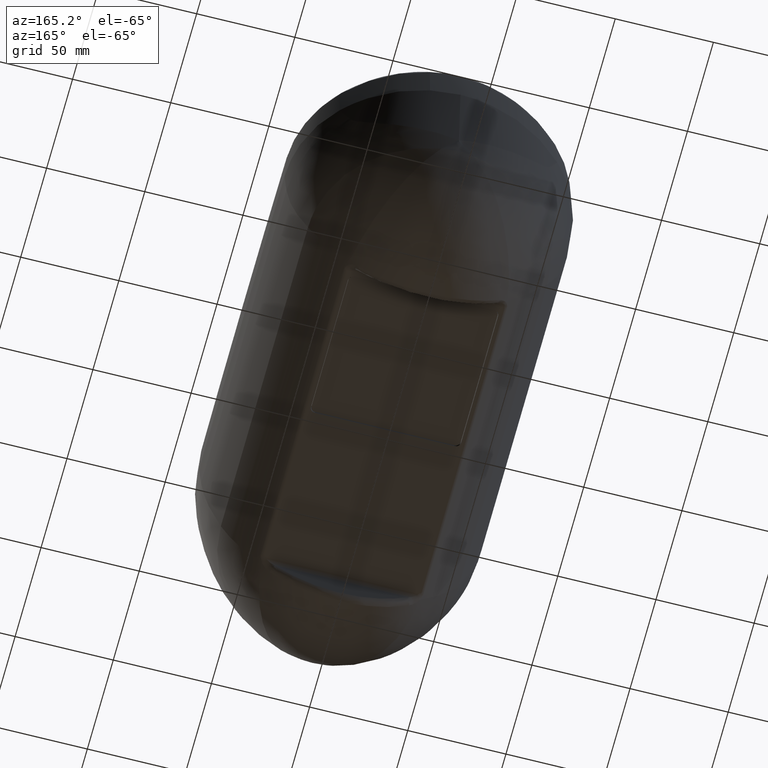
[diagram: clean part render]
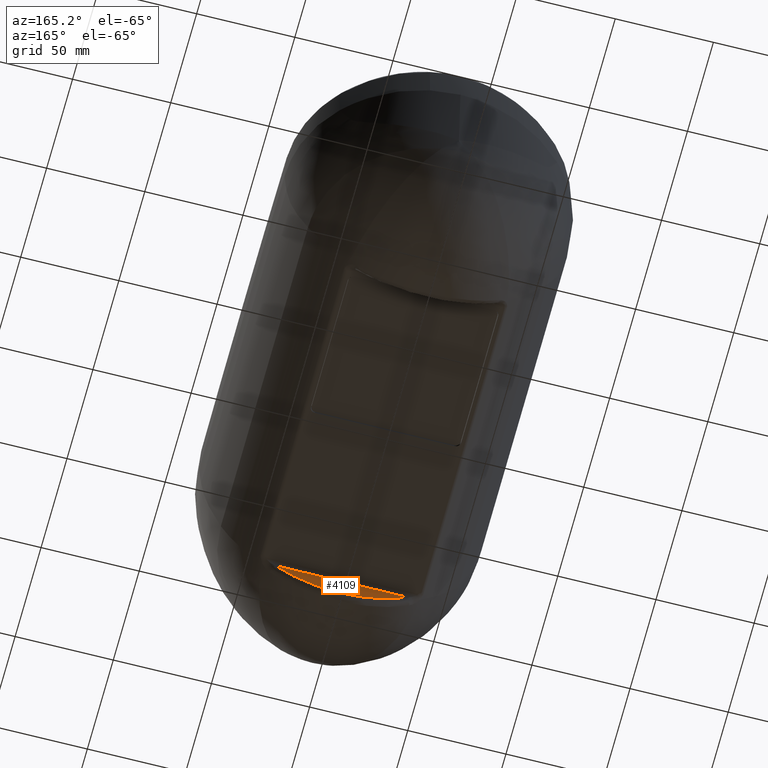
[diagram: same view with one face highlighted and labeled with its STEP entity id]
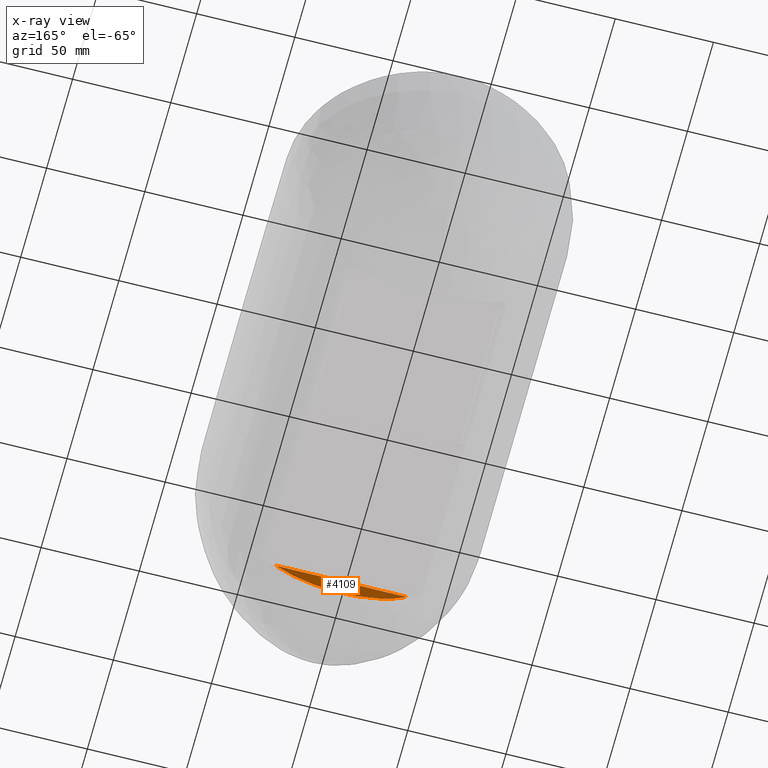
[diagram: x-ray of the same camera — body ghosted, the highlighted face saturated]
A machine part, auxiliary view. The second image highlights one B-rep face of the part: STEP entity #4109.
The next image is the same camera in x-ray: the body ghosted, the highlighted face saturated — about 0% of this face is hidden behind the body in this view.
In plain terms, the highlighted planar face has unit normal (0, 0.9986, -0.0523).
Its self-contained STEP definition (entity closure, byte-faithful):
#663 = CARTESIAN_POINT ( 'NONE',  ( 14.92591153705166995, -39.75024826428141012, 78.07579926686130989 ) ) ;
#980 = CARTESIAN_POINT ( 'NONE',  ( 3.036556305407047240, -39.86407716933042877, 75.90381437060659664 ) ) ;
#1344 = VECTOR ( 'NONE', #4018, 1000.000000000000000 ) ;
#1490 = FACE_OUTER_BOUND ( 'NONE', #12181, .T. ) ;
#1719 = EDGE_CURVE ( 'Defeatured_1_19+Defeatured_1_32+Defeatured_1_35+Defeatured_1_35', #15215, #4623, #12021, .T. ) ;
#1857 = CARTESIAN_POINT ( 'NONE',  ( 28.61712390733957534, -39.41405370093367821, 84.49077368377042774 ) ) ;
#1940 = CARTESIAN_POINT ( 'NONE',  ( 12.00217459347269333, -39.79157725061336492, 77.28719522949599252 ) ) ;
#2457 = ORIENTED_EDGE ( 'NONE', *, *, #12517, .T. ) ;
#3285 = CARTESIAN_POINT ( 'NONE',  ( -33.46319767680959956, -39.22191450896857390, 88.15700786872807271 ) ) ;
#3523 = CARTESIAN_POINT ( 'NONE',  ( -7.590742059294302457, -39.83523445758658710, 76.45416609583543277 ) ) ;
#4018 = DIRECTION ( 'NONE',  ( 1.000000000000000000, -5.007417855406813218E-32, 5.551115123125782702E-17 ) ) ;
#4109 = ADVANCED_FACE ( 'Defeatured_1_19', ( #1490 ), #11112, .T. ) ;
#4235 = CARTESIAN_POINT ( 'NONE',  ( 32.29575474363673493, -39.27367387239959839, 87.16938038022938429 ) ) ;
#4623 = VERTEX_POINT ( 'NONE', #12960 ) ;
#5212 = CARTESIAN_POINT ( 'NONE',  ( 4.923839114212562315E-14, -39.07291960484941740, 90.99999999999901945 ) ) ;
#5733 = CARTESIAN_POINT ( 'NONE',  ( -14.98165566666310689, -39.75300801640128867, 78.02314005943755149 ) ) ;
#6330 = DIRECTION ( 'NONE',  ( -5.543507512776179837E-17, 0.05233595624294334892, 0.9986295347545739443 ) ) ;
#6700 = CARTESIAN_POINT ( 'NONE',  ( 20.67904992731402558, -39.64361685871377006, 80.11044769170206337 ) ) ;
#7020 = CARTESIAN_POINT ( 'NONE',  ( -1.552627738984635686, -39.86397342641608788, 75.90579390333553533 ) ) ;
#7434 = AXIS2_PLACEMENT_3D ( 'NONE', #5212, #11417, #6330 ) ;
#9097 = CARTESIAN_POINT ( 'NONE',  ( 27.34219849094714760, -39.45692590732971894, 83.67272325342332806 ) ) ;
#9718 = CARTESIAN_POINT ( 'NONE',  ( -99.99999999999998579, -39.22191450896854548, 88.15700786872804429 ) ) ;
#9959 = CARTESIAN_POINT ( 'NONE',  ( -33.46319767680959956, -39.22191450896857390, 88.15700786872807271 ) ) ;
#10296 = CARTESIAN_POINT ( 'NONE',  ( 33.46319767680964219, -39.22191450896858811, 88.15700786872807271 ) ) ;
#10522 = CARTESIAN_POINT ( 'NONE',  ( -23.59272926378794111, -39.58745382383163047, 81.18210223708598505 ) ) ;
#10597 = CARTESIAN_POINT ( 'NONE',  ( -6.090395040453161712, -39.84566927308303264, 76.25505795503683260 ) ) ;
#10677 = CARTESIAN_POINT ( 'NONE',  ( -8.339580897681692306, -39.82913997634635450, 76.57045572542131140 ) ) ;
#11112 = PLANE ( 'NONE',  #7434 ) ;
#11417 = DIRECTION ( 'NONE',  ( 2.905229181834569746E-18, 0.9986295347545739443, -0.05233595624294334892 ) ) ;
#11556 = CARTESIAN_POINT ( 'NONE',  ( 16.37430350928464762, -39.72615899498632785, 78.53544990698827633 ) ) ;
#11638 = CARTESIAN_POINT ( 'NONE',  ( 10.52808881301246124, -39.80880528347721281, 76.95846477956031606 ) ) ;
#11883 = CARTESIAN_POINT ( 'NONE',  ( -12.06039555500532856, -39.79443801190919316, 77.23260865217959292 ) ) ;
#12021 = LINE ( 'NONE', #9718, #1344 ) ;
#12044 = CARTESIAN_POINT ( 'NONE',  ( -3.832529263202431036, -39.85872143769642406, 76.00600781797778893 ) ) ;
#12181 = EDGE_LOOP ( 'NONE', ( #15725, #2457 ) ) ;
#12517 = EDGE_CURVE ( 'Defeatured_1_19+Defeatured_1_35+Defeatured_1_32+Defeatured_1_32', #4623, #15215, #14203, .T. ) ;
#12756 = CARTESIAN_POINT ( 'NONE',  ( 23.42184858661730473, -39.57629276933956675, 81.39506784342825085 ) ) ;
#12838 = CARTESIAN_POINT ( 'NONE',  ( 31.09305140310816284, -39.32245358347885400, 86.23860804553815740 ) ) ;
#12960 = CARTESIAN_POINT ( 'NONE',  ( 33.46319767680964219, -39.22191450896858811, 88.15700786872807271 ) ) ;
#13157 = CARTESIAN_POINT ( 'NONE',  ( -28.79645731193401303, -39.42881756497288137, 84.20906237599965038 ) ) ;
#14103 = CARTESIAN_POINT ( 'NONE',  ( 6.057846827647574983, -39.85028515871961474, 76.16698161027008496 ) ) ;
#14203 = B_SPLINE_CURVE_WITH_KNOTS ( 'NONE', 3,
 ( #10296, #4235, #12838, #1857, #9097, #12756, #6700, #11556, #663, #1940, #11638, #14103, #980, #7020, #12044, #10597, #3523, #10677, #11883, #5733, #10522, #13157, #3285 ),
 .UNSPECIFIED., .F., .F.,
 ( 4, 2, 2, 2, 2, 2, 2, 1, 2, 2, 2, 4 ),
 ( 0.0000000000000000000, 0.06250000000000000000, 0.1250000000000000000, 0.2500000000000000000, 0.3125000000000000000, 0.3750000000000000000, 0.5000000000000000000, 0.5625000000000000000, 0.5937500000000000000, 0.6250000000000000000, 0.7500000000000000000, 1.000000000000000000 ),
 .UNSPECIFIED. ) ;
#15215 = VERTEX_POINT ( 'NONE', #9959 ) ;
#15725 = ORIENTED_EDGE ( 'NONE', *, *, #1719, .T. ) ;